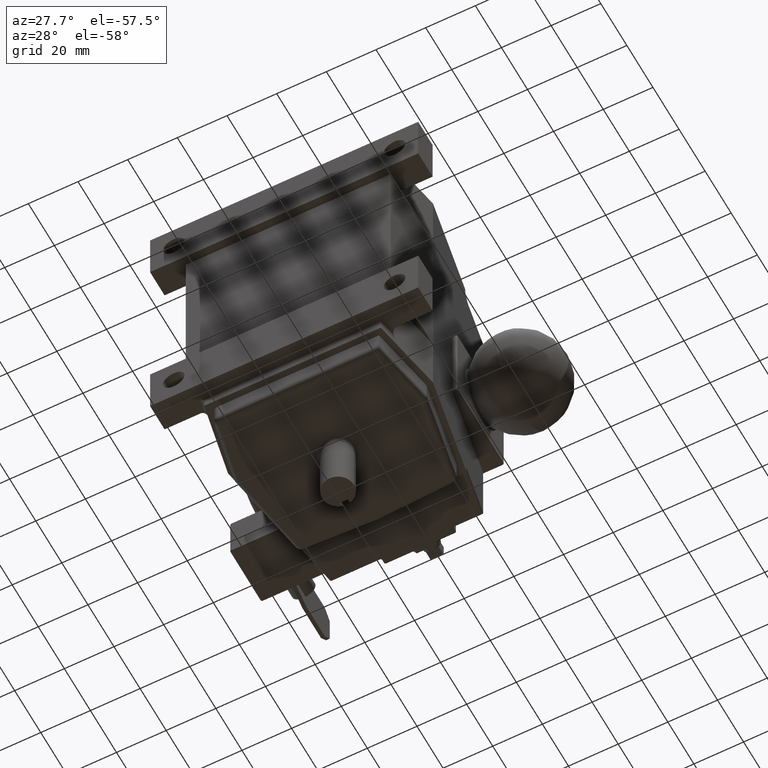
[diagram: clean part render]
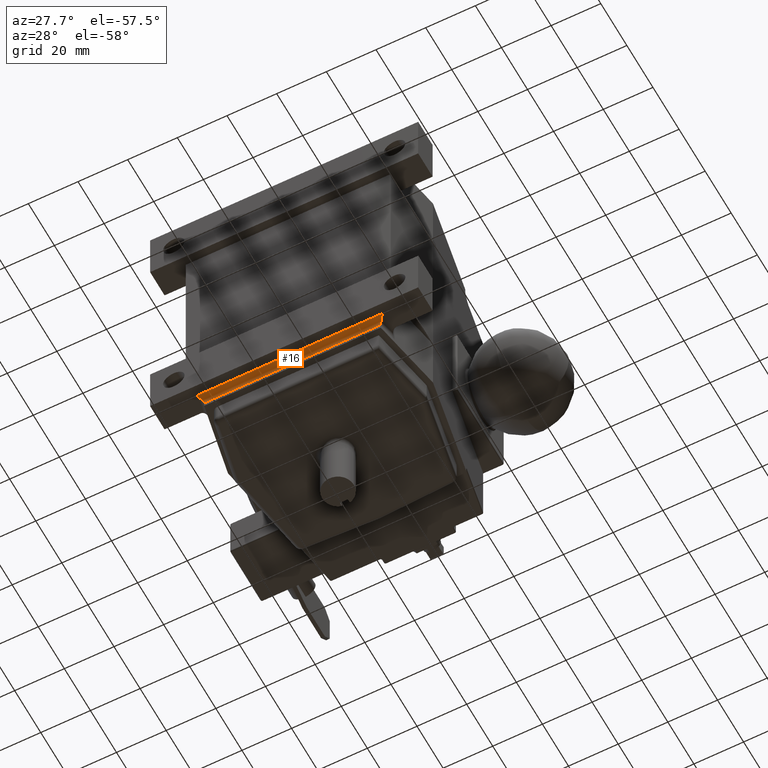
[diagram: same view with one face highlighted and labeled with its STEP entity id]
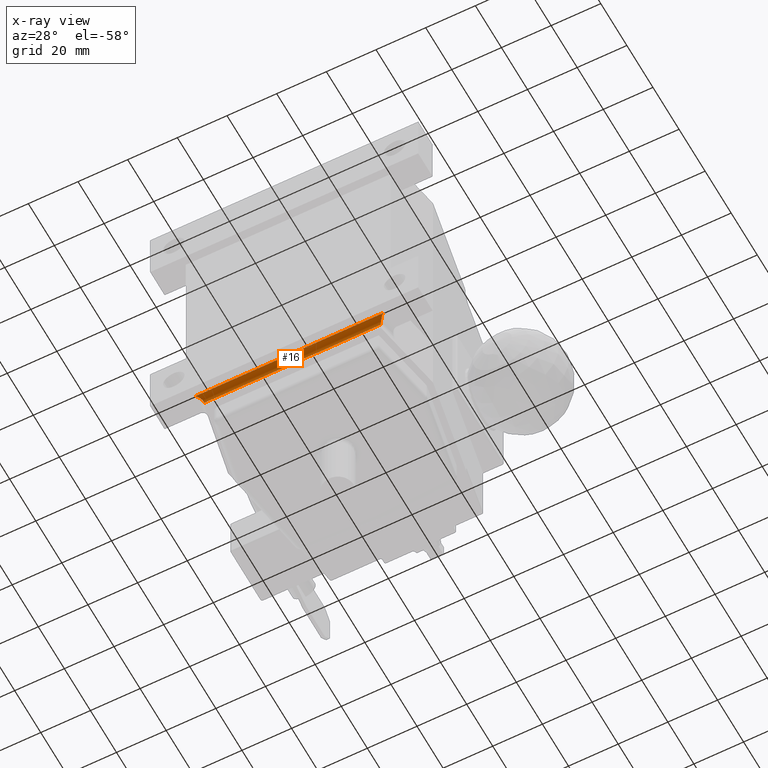
[diagram: x-ray of the same camera — body ghosted, the highlighted face saturated]
A machine part, auxiliary view. The second image highlights one B-rep face of the part: STEP entity #16.
The next image is the same camera in x-ray: the body ghosted, the highlighted face saturated — about 0% of this face is hidden behind the body in this view.
In plain terms, the highlighted cylindrical surface (edge-blend (fillet) strip) has radius 2.54 mm, axis along (1, -0, -0).
Its self-contained STEP definition (entity closure, byte-faithful):
#16 = ADVANCED_FACE ( 'NONE', ( #2942 ), #2951, .F. ) ;
#717 = EDGE_CURVE ( 'NONE', #10101, #10102, #4890, .T. ) ;
#773 = EDGE_CURVE ( 'NONE', #10127, #10132, #4984, .T. ) ;
#857 = EDGE_LOOP ( 'NONE', ( #7804, #7805, #7806, #7807 ) ) ;
#2182 = EDGE_CURVE ( 'NONE', #10127, #10102, #5523, .T. ) ;
#2183 = EDGE_CURVE ( 'NONE', #10132, #10101, #5524, .T. ) ;
#2201 = AXIS2_PLACEMENT_3D ( 'NONE', #7521, #7522, #7526 ) ;
#2942 = FACE_OUTER_BOUND ( 'NONE', #857, .T. ) ;
#2951 = CYLINDRICAL_SURFACE ( 'NONE', #2201, 0.1000000000000000200 ) ;
#4389 = CARTESIAN_POINT ( 'NONE',  ( 1.399999999999999200, 0.1499999999999992500, -2.162499999999999600 ) ) ;
#4390 = DIRECTION ( 'NONE',  ( 1.000000000000000000, -1.219574997171546300E-016, -1.285575526430242400E-016 ) ) ;
#4509 = CARTESIAN_POINT ( 'NONE',  ( -1.399999999999999500, 0.2499999999999995800, -2.262499999999999300 ) ) ;
#4512 = DIRECTION ( 'NONE',  ( -1.000000000000000000, 1.219574997171546300E-016, 1.285575526430242400E-016 ) ) ;
#4890 = LINE ( 'NONE', #4389, #4891 ) ;
#4891 = VECTOR ( 'NONE', #4390, 39.37007874015748100 ) ;
#4984 = LINE ( 'NONE', #4509, #4995 ) ;
#4995 = VECTOR ( 'NONE', #4512, 39.37007874015748100 ) ;
#5523 =( BOUNDED_CURVE ( )  B_SPLINE_CURVE ( 3, ( #6409, #6422, #6423, #6424 ),
 .UNSPECIFIED., .F., .T. ) 
 B_SPLINE_CURVE_WITH_KNOTS ( ( 4, 4 ),
 ( 0.0000000000000000000, 1.570796326794896600 ),
 .UNSPECIFIED. ) 
 CURVE ( )  GEOMETRIC_REPRESENTATION_ITEM ( )  RATIONAL_B_SPLINE_CURVE ( ( 1.000000000000000000, 0.8047378541243649400, 0.8047378541243649400, 1.000000000000000000 ) ) 
 REPRESENTATION_ITEM ( '' )  );
#5524 =( BOUNDED_CURVE ( )  B_SPLINE_CURVE ( 3, ( #6416, #6426, #6427, #6428 ),
 .UNSPECIFIED., .F., .T. ) 
 B_SPLINE_CURVE_WITH_KNOTS ( ( 4, 4 ),
 ( 1.058424575857907100E-016, 1.570796326794896100 ),
 .UNSPECIFIED. ) 
 CURVE ( )  GEOMETRIC_REPRESENTATION_ITEM ( )  RATIONAL_B_SPLINE_CURVE ( ( 1.000000000000000000, 0.8047378541243650500, 0.8047378541243650500, 1.000000000000000000 ) ) 
 REPRESENTATION_ITEM ( '' )  );
#6409 = CARTESIAN_POINT ( 'NONE',  ( 1.399999999999999500, 0.2499999999999992500, -2.262499999999999300 ) ) ;
#6416 = CARTESIAN_POINT ( 'NONE',  ( -1.400000000000000100, 0.2499999999999995800, -2.262499999999999300 ) ) ;
#6422 = CARTESIAN_POINT ( 'NONE',  ( 1.399999999999999700, 0.2499999999999992500, -2.203921356237308800 ) ) ;
#6423 = CARTESIAN_POINT ( 'NONE',  ( 1.434102532683296100, 0.2085786437626897500, -2.162499999999999200 ) ) ;
#6424 = CARTESIAN_POINT ( 'NONE',  ( 1.482330796915286100, 0.1499999999999992200, -2.162499999999999600 ) ) ;
#6426 = CARTESIAN_POINT ( 'NONE',  ( -1.400000000000000100, 0.2499999999999992500, -2.203921356237308800 ) ) ;
#6427 = CARTESIAN_POINT ( 'NONE',  ( -1.434102532683296600, 0.2085786437626897800, -2.162499999999998800 ) ) ;
#6428 = CARTESIAN_POINT ( 'NONE',  ( -1.482330796915286800, 0.1499999999999996100, -2.162499999999999200 ) ) ;
#7521 = CARTESIAN_POINT ( 'NONE',  ( -1.399999999999999200, 0.1499999999999995800, -2.262499999999999300 ) ) ;
#7522 = DIRECTION ( 'NONE',  ( 1.000000000000000000, -1.219574997171546300E-016, -1.285575526430242400E-016 ) ) ;
#7526 = DIRECTION ( 'NONE',  ( 0.0000000000000000000, 0.0000000000000000000, -1.000000000000000000 ) ) ;
#7804 = ORIENTED_EDGE ( 'NONE', *, *, #2182, .T. ) ;
#7805 = ORIENTED_EDGE ( 'NONE', *, *, #717, .F. ) ;
#7806 = ORIENTED_EDGE ( 'NONE', *, *, #2183, .F. ) ;
#7807 = ORIENTED_EDGE ( 'NONE', *, *, #773, .F. ) ;
#9453 = CARTESIAN_POINT ( 'NONE',  ( -1.482330796915286800, 0.1499999999999996100, -2.162499999999999200 ) ) ;
#9454 = CARTESIAN_POINT ( 'NONE',  ( 1.482330796915286100, 0.1499999999999992200, -2.162499999999999600 ) ) ;
#9479 = CARTESIAN_POINT ( 'NONE',  ( 1.399999999999999500, 0.2499999999999992500, -2.262499999999999300 ) ) ;
#9484 = CARTESIAN_POINT ( 'NONE',  ( -1.400000000000000100, 0.2499999999999995800, -2.262499999999999300 ) ) ;
#10101 = VERTEX_POINT ( 'NONE', #9453 ) ;
#10102 = VERTEX_POINT ( 'NONE', #9454 ) ;
#10127 = VERTEX_POINT ( 'NONE', #9479 ) ;
#10132 = VERTEX_POINT ( 'NONE', #9484 ) ;